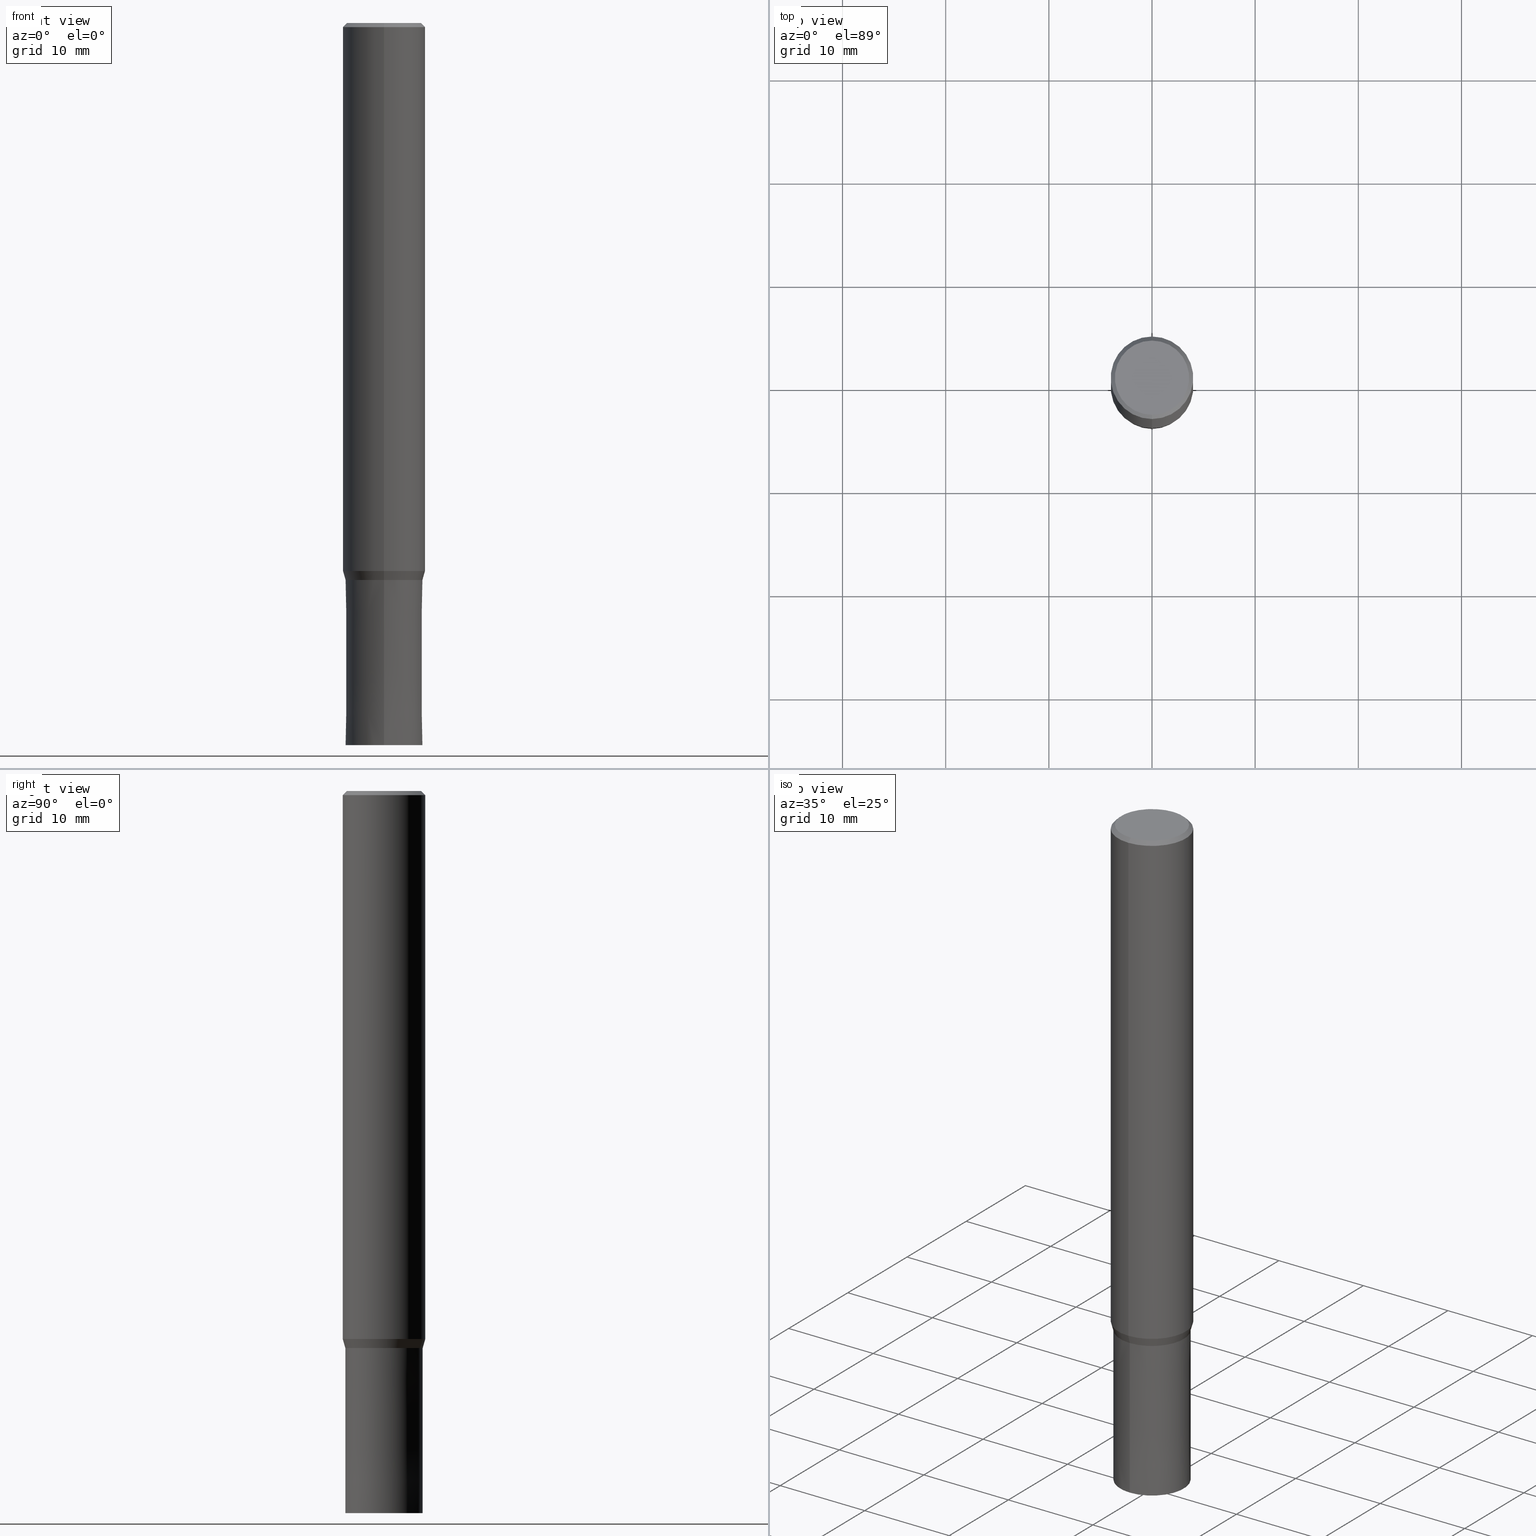
[diagram: canonical four-view strip — front | top / right | iso, engineering-drawing reading convention]
A machine part, canonical four-view strip (front | top / right | iso — engineering-drawing reading convention). The complete STEP part file that produces these views, byte-faithful:
ISO-10303-21;
HEADER;
FILE_DESCRIPTION(('no description'),'unknown implementation level');
FILE_NAME('CZS4075-1600-Huellk.stp','  ',('CIMSOURCE GmbH'),('CADClick - KiM GmbH - www.kimweb.de'),'unknown preprocess','ACIS','unknown authorization');
FILE_SCHEMA(('automotive_design'));
ENDSEC;
DATA;
#1=MECHANICAL_DESIGN_GEOMETRIC_PRESENTATION_REPRESENTATION(' ',(#14,#15,#16,#17,#18,#19,#20,#21,#22,#23,#24,#25,#26,#27,#28,#29,#30,#31,#32,#33,#34,#35,#36,#37,#38,#39,#40,#41,#42,#43,#44,#45,#46,#47,#48,#49,#50,#51,#52,#53,#54,#55,#56,#57,#58,#59,#60,#61,#62,#63,#64),#10);
#2=PRODUCT_DEFINITION_CONTEXT('',#65,'design');
#3=APPLICATION_PROTOCOL_DEFINITION('INTERNATIONAL STANDARD','automotive_design',1994,#65);
#4=PRODUCT_CATEGORY_RELATIONSHIP('NONE','NONE',#66,#67);
#5=SHAPE_DEFINITION_REPRESENTATION(#68,#69);
#6=PRODUCT_DEFINITION_CONTEXT('',#70,'design');
#7=APPLICATION_PROTOCOL_DEFINITION('INTERNATIONAL STANDARD','automotive_design',1994,#70);
#8=PRODUCT_CATEGORY_RELATIONSHIP('NONE','NONE',#71,#72);
#9=SHAPE_DEFINITION_REPRESENTATION(#73,#74);
#10= (GEOMETRIC_REPRESENTATION_CONTEXT(3)GLOBAL_UNCERTAINTY_ASSIGNED_CONTEXT((#77))GLOBAL_UNIT_ASSIGNED_CONTEXT((#79,#80,#81))REPRESENTATION_CONTEXT('NONE','WORKSPACE'));
#14=STYLED_ITEM('',(#83),#84);
#15=STYLED_ITEM('',(#85),#86);
#16=STYLED_ITEM('',(#87),#88);
#17=STYLED_ITEM('',(#89),#90);
#18=STYLED_ITEM('',(#91),#92);
#19=STYLED_ITEM('',(#93),#94);
#20=STYLED_ITEM('',(#95),#96);
#21=STYLED_ITEM('',(#97),#98);
#22=STYLED_ITEM('',(#99),#100);
#23=STYLED_ITEM('',(#101),#102);
#24=STYLED_ITEM('',(#103),#104);
#25=STYLED_ITEM('',(#105),#106);
#26=STYLED_ITEM('',(#107),#108);
#27=STYLED_ITEM('',(#109),#110);
#28=STYLED_ITEM('',(#111),#112);
#29=STYLED_ITEM('',(#113),#114);
#30=STYLED_ITEM('',(#115),#116);
#31=STYLED_ITEM('',(#117),#118);
#32=STYLED_ITEM('',(#119),#120);
#33=STYLED_ITEM('',(#121),#122);
#34=STYLED_ITEM('',(#123),#124);
#35=STYLED_ITEM('',(#125),#126);
#36=STYLED_ITEM('',(#127),#128);
#37=STYLED_ITEM('',(#129),#130);
#38=STYLED_ITEM('',(#131),#132);
#39=STYLED_ITEM('',(#133),#134);
#40=STYLED_ITEM('',(#135),#136);
#41=STYLED_ITEM('',(#137),#138);
#42=STYLED_ITEM('',(#139),#140);
#43=STYLED_ITEM('',(#141),#142);
#44=STYLED_ITEM('',(#143),#144);
#45=STYLED_ITEM('',(#145),#146);
#46=STYLED_ITEM('',(#147),#148);
#47=STYLED_ITEM('',(#149),#150);
#48=STYLED_ITEM('',(#151),#152);
#49=STYLED_ITEM('',(#153),#154);
#50=STYLED_ITEM('',(#155),#156);
#51=STYLED_ITEM('',(#157),#158);
#52=STYLED_ITEM('',(#159),#160);
#53=STYLED_ITEM('',(#161),#162);
#54=STYLED_ITEM('',(#163),#164);
#55=STYLED_ITEM('',(#165),#166);
#56=STYLED_ITEM('',(#167),#168);
#57=STYLED_ITEM('',(#169),#170);
#58=STYLED_ITEM('',(#171),#172);
#59=STYLED_ITEM('',(#173),#174);
#60=STYLED_ITEM('',(#175),#176);
#61=STYLED_ITEM('',(#177),#178);
#62=STYLED_ITEM('',(#179),#180);
#63=STYLED_ITEM('',(#181),#182);
#64=STYLED_ITEM('',(#183),#184);
#65=APPLICATION_CONTEXT(' ');
#66=PRODUCT_CATEGORY('part','NONE');
#67=PRODUCT_RELATED_PRODUCT_CATEGORY('detail',' ',(#185));
#68=PRODUCT_DEFINITION_SHAPE('NONE','NONE',#186);
#69=ADVANCED_BREP_SHAPE_REPRESENTATION('1',(#92,#187),#10);
#70=APPLICATION_CONTEXT(' ');
#71=PRODUCT_CATEGORY('part','NONE');
#72=PRODUCT_RELATED_PRODUCT_CATEGORY('detail',' ',(#188));
#73=PRODUCT_DEFINITION_SHAPE('NONE','NONE',#189);
#74=ADVANCED_BREP_SHAPE_REPRESENTATION('2',(#154,#190),#10);
#77=UNCERTAINTY_MEASURE_WITH_UNIT(LENGTH_MEASURE(1.0E-006),#79,'','');
#79= (CONVERSION_BASED_UNIT('MILLIMETRE',#193)LENGTH_UNIT()NAMED_UNIT(#196));
#80= (NAMED_UNIT(#198)PLANE_ANGLE_UNIT()SI_UNIT($,.RADIAN.));
#81= (NAMED_UNIT(#198)SOLID_ANGLE_UNIT()SI_UNIT($,.STERADIAN.));
#83=PRESENTATION_STYLE_ASSIGNMENT((#204));
#84=EDGE_CURVE('',#106,#118,#205,.T.);
#85=PRESENTATION_STYLE_ASSIGNMENT((#206));
#86=VERTEX_POINT('',#207);
#87=PRESENTATION_STYLE_ASSIGNMENT((#208));
#88=ADVANCED_FACE('',(#209,#210),#211,.T.);
#89=PRESENTATION_STYLE_ASSIGNMENT((#212));
#90=VERTEX_POINT('',#213);
#91=PRESENTATION_STYLE_ASSIGNMENT((#214));
#92=MANIFOLD_SOLID_BREP('1',#215);
#93=PRESENTATION_STYLE_ASSIGNMENT((#216));
#94=VERTEX_POINT('',#217);
#95=PRESENTATION_STYLE_ASSIGNMENT((#218));
#96=ADVANCED_FACE('',(#219),#220,.T.);
#97=PRESENTATION_STYLE_ASSIGNMENT((#221));
#98=EDGE_CURVE('',#120,#150,#222,.T.);
#99=PRESENTATION_STYLE_ASSIGNMENT((#223));
#100=ADVANCED_FACE('',(#224),#225,.T.);
#101=PRESENTATION_STYLE_ASSIGNMENT((#226));
#102=EDGE_CURVE('',#106,#94,#227,.T.);
#103=PRESENTATION_STYLE_ASSIGNMENT((#228));
#104=VERTEX_POINT('',#229);
#105=PRESENTATION_STYLE_ASSIGNMENT((#230));
#106=VERTEX_POINT('',#231);
#107=PRESENTATION_STYLE_ASSIGNMENT((#232));
#108=VERTEX_POINT('',#233);
#109=PRESENTATION_STYLE_ASSIGNMENT((#234));
#110=ADVANCED_FACE('',(#235),#236,.T.);
#111=PRESENTATION_STYLE_ASSIGNMENT((#237));
#112=EDGE_CURVE('',#134,#128,#238,.T.);
#113=PRESENTATION_STYLE_ASSIGNMENT((#239));
#114=EDGE_CURVE('',#140,#90,#240,.T.);
#115=PRESENTATION_STYLE_ASSIGNMENT((#241));
#116=ADVANCED_FACE('',(#242),#243,.T.);
#117=PRESENTATION_STYLE_ASSIGNMENT((#244));
#118=VERTEX_POINT('',#245);
#119=PRESENTATION_STYLE_ASSIGNMENT((#246));
#120=VERTEX_POINT('',#247);
#121=PRESENTATION_STYLE_ASSIGNMENT((#248));
#122=ADVANCED_FACE('',(#249),#250,.T.);
#123=PRESENTATION_STYLE_ASSIGNMENT((#251));
#124=ADVANCED_FACE('',(#252),#253,.T.);
#125=PRESENTATION_STYLE_ASSIGNMENT((#254));
#126=EDGE_CURVE('',#134,#120,#255,.T.);
#127=PRESENTATION_STYLE_ASSIGNMENT((#256));
#128=VERTEX_POINT('',#257);
#129=PRESENTATION_STYLE_ASSIGNMENT((#258));
#130=ADVANCED_FACE('',(#259),#260,.T.);
#131=PRESENTATION_STYLE_ASSIGNMENT((#261));
#132=EDGE_CURVE('',#128,#90,#262,.T.);
#133=PRESENTATION_STYLE_ASSIGNMENT((#263));
#134=VERTEX_POINT('',#264);
#135=PRESENTATION_STYLE_ASSIGNMENT((#265));
#136=VERTEX_POINT('',#266);
#137=PRESENTATION_STYLE_ASSIGNMENT((#267));
#138=EDGE_CURVE('',#136,#118,#268,.T.);
#139=PRESENTATION_STYLE_ASSIGNMENT((#269));
#140=VERTEX_POINT('',#270);
#141=PRESENTATION_STYLE_ASSIGNMENT((#271));
#142=ADVANCED_FACE('',(#272),#273,.T.);
#143=PRESENTATION_STYLE_ASSIGNMENT((#274));
#144=VERTEX_POINT('',#275);
#145=PRESENTATION_STYLE_ASSIGNMENT((#276));
#146=EDGE_CURVE('',#140,#134,#277,.T.);
#147=PRESENTATION_STYLE_ASSIGNMENT((#278));
#148=EDGE_CURVE('',#136,#94,#279,.T.);
#149=PRESENTATION_STYLE_ASSIGNMENT((#280));
#150=VERTEX_POINT('',#281);
#151=PRESENTATION_STYLE_ASSIGNMENT((#282));
#152=EDGE_CURVE('',#86,#144,#283,.T.);
#153=PRESENTATION_STYLE_ASSIGNMENT((#284));
#154=MANIFOLD_SOLID_BREP('2',#285);
#155=PRESENTATION_STYLE_ASSIGNMENT((#286));
#156=EDGE_CURVE('',#118,#136,#287,.T.);
#157=PRESENTATION_STYLE_ASSIGNMENT((#288));
#158=EDGE_CURVE('',#144,#108,#289,.T.);
#159=PRESENTATION_STYLE_ASSIGNMENT((#290));
#160=EDGE_CURVE('',#150,#128,#291,.T.);
#161=PRESENTATION_STYLE_ASSIGNMENT((#292));
#162=EDGE_CURVE('',#104,#86,#293,.T.);
#163=PRESENTATION_STYLE_ASSIGNMENT((#294));
#164=EDGE_CURVE('',#108,#144,#295,.T.);
#165=PRESENTATION_STYLE_ASSIGNMENT((#296));
#166=ADVANCED_FACE('',(#297),#298,.T.);
#167=PRESENTATION_STYLE_ASSIGNMENT((#299));
#168=EDGE_CURVE('',#90,#140,#300,.T.);
#169=PRESENTATION_STYLE_ASSIGNMENT((#301));
#170=ADVANCED_FACE('',(#302),#303,.T.);
#171=PRESENTATION_STYLE_ASSIGNMENT((#304));
#172=EDGE_CURVE('',#108,#104,#305,.T.);
#173=PRESENTATION_STYLE_ASSIGNMENT((#306));
#174=ADVANCED_FACE('',(#307),#308,.T.);
#175=PRESENTATION_STYLE_ASSIGNMENT((#309));
#176=EDGE_CURVE('',#94,#106,#310,.T.);
#177=PRESENTATION_STYLE_ASSIGNMENT((#311));
#178=EDGE_CURVE('',#150,#120,#312,.T.);
#179=PRESENTATION_STYLE_ASSIGNMENT((#313));
#180=EDGE_CURVE('',#86,#104,#314,.T.);
#181=PRESENTATION_STYLE_ASSIGNMENT((#315));
#182=EDGE_CURVE('',#128,#134,#316,.T.);
#183=PRESENTATION_STYLE_ASSIGNMENT((#317));
#184=ADVANCED_FACE('',(#318),#319,.T.);
#185=PRODUCT('1','1','PART-1-DESC',(#320));
#186=PRODUCT_DEFINITION('NONE','NONE',#321,#2);
#187=AXIS2_PLACEMENT_3D('',#322,#323,#324);
#188=PRODUCT('2','2','PART-2-DESC',(#325));
#189=PRODUCT_DEFINITION('NONE','NONE',#326,#6);
#190=AXIS2_PLACEMENT_3D('',#327,#328,#329);
#193=LENGTH_MEASURE_WITH_UNIT(LENGTH_MEASURE(1.0),#330);
#196=DIMENSIONAL_EXPONENTS(1.0,0.0,0.0,0.0,0.0,0.0,0.0);
#198=DIMENSIONAL_EXPONENTS(0.0,0.0,0.0,0.0,0.0,0.0,0.0);
#204=CURVE_STYLE('',#331,POSITIVE_LENGTH_MEASURE(1.0E-006),#332);
#205=LINE('',#333,#334);
#206=POINT_STYLE(' ',#335,POSITIVE_LENGTH_MEASURE(1.0E-006),#336);
#207=CARTESIAN_POINT('',(0.0,3.99995,-53.128));
#208=SURFACE_STYLE_USAGE(.BOTH.,#337);
#209=FACE_OUTER_BOUND('',#338,.T.);
#210=FACE_BOUND('',#339,.T.);
#211=PLANE('',#340);
#212=POINT_STYLE(' ',#341,POSITIVE_LENGTH_MEASURE(1.0E-006),#342);
#213=CARTESIAN_POINT('',(4.40858287376056E-016,-3.6,0.0));
#214=SURFACE_STYLE_USAGE(.BOTH.,#343);
#215=CLOSED_SHELL('',(#130,#174,#184,#88,#96,#122,#142,#110,#124));
#216=POINT_STYLE(' ',#344,POSITIVE_LENGTH_MEASURE(1.0E-006),#345);
#217=CARTESIAN_POINT('',(4.59215136619853E-016,-3.7499,-54.0));
#218=SURFACE_STYLE_USAGE(.BOTH.,#346);
#219=FACE_OUTER_BOUND('',#347,.T.);
#220=PLANE('',#348);
#221=CURVE_STYLE('',#349,POSITIVE_LENGTH_MEASURE(1.0E-006),#350);
#222=CIRCLE('',#351,4.0);
#223=SURFACE_STYLE_USAGE(.BOTH.,#352);
#224=FACE_OUTER_BOUND('',#353,.T.);
#225=CONICAL_SURFACE('',#354,3.74995,6.24999999993181E-006);
#226=CURVE_STYLE('',#355,POSITIVE_LENGTH_MEASURE(1.0E-006),#356);
#227=CIRCLE('',#357,3.7499);
#228=POINT_STYLE(' ',#358,POSITIVE_LENGTH_MEASURE(1.0E-006),#359);
#229=CARTESIAN_POINT('',(4.89836418497182E-016,-3.99995,-53.128));
#230=POINT_STYLE(' ',#360,POSITIVE_LENGTH_MEASURE(1.0E-006),#361);
#231=CARTESIAN_POINT('',(0.0,3.7499,-54.0));
#232=POINT_STYLE(' ',#362,POSITIVE_LENGTH_MEASURE(1.0E-006),#363);
#233=CARTESIAN_POINT('',(4.59221259651622E-016,-3.74995,-54.0));
#234=SURFACE_STYLE_USAGE(.BOTH.,#364);
#235=FACE_OUTER_BOUND('',#365,.T.);
#236=CONICAL_SURFACE('',#366,3.87495,0.279208199033747);
#237=CURVE_STYLE('',#367,POSITIVE_LENGTH_MEASURE(1.0E-006),#368);
#238=CIRCLE('',#369,4.0);
#239=CURVE_STYLE('',#370,POSITIVE_LENGTH_MEASURE(1.0E-006),#371);
#240=CIRCLE('',#372,3.6);
#241=SURFACE_STYLE_USAGE(.BOTH.,#373);
#242=FACE_OUTER_BOUND('',#374,.T.);
#243=CONICAL_SURFACE('',#375,3.74995,6.24999999993181E-006);
#244=POINT_STYLE(' ',#376,POSITIVE_LENGTH_MEASURE(1.0E-006),#377);
#245=CARTESIAN_POINT('',(0.0,3.75,-70.0));
#246=POINT_STYLE(' ',#378,POSITIVE_LENGTH_MEASURE(1.0E-006),#379);
#247=CARTESIAN_POINT('',(0.0,4.0,-53.128));
#248=SURFACE_STYLE_USAGE(.BOTH.,#380);
#249=FACE_OUTER_BOUND('',#381,.T.);
#250=CONICAL_SURFACE('',#382,3.8,0.78539816339745);
#251=SURFACE_STYLE_USAGE(.BOTH.,#383);
#252=FACE_OUTER_BOUND('',#384,.T.);
#253=PLANE('',#385);
#254=CURVE_STYLE('',#386,POSITIVE_LENGTH_MEASURE(1.0E-006),#387);
#255=LINE('',#388,#389);
#256=POINT_STYLE(' ',#390,POSITIVE_LENGTH_MEASURE(1.0E-006),#391);
#257=CARTESIAN_POINT('',(4.89842541528951E-016,-4.0,-0.399999999999999));
#258=SURFACE_STYLE_USAGE(.BOTH.,#392);
#259=FACE_OUTER_BOUND('',#393,.T.);
#260=CONICAL_SURFACE('',#394,3.87495,0.279208199033747);
#261=CURVE_STYLE('',#395,POSITIVE_LENGTH_MEASURE(1.0E-006),#396);
#262=LINE('',#397,#398);
#263=POINT_STYLE(' ',#399,POSITIVE_LENGTH_MEASURE(1.0E-006),#400);
#264=CARTESIAN_POINT('',(0.0,4.0,-0.399999999999999));
#265=POINT_STYLE(' ',#401,POSITIVE_LENGTH_MEASURE(1.0E-006),#402);
#266=CARTESIAN_POINT('',(4.59227382683391E-016,-3.75,-70.0));
#267=CURVE_STYLE('',#403,POSITIVE_LENGTH_MEASURE(1.0E-006),#404);
#268=CIRCLE('',#405,3.75);
#269=POINT_STYLE(' ',#406,POSITIVE_LENGTH_MEASURE(1.0E-006),#407);
#270=CARTESIAN_POINT('',(0.0,3.6,0.0));
#271=SURFACE_STYLE_USAGE(.BOTH.,#408);
#272=FACE_OUTER_BOUND('',#409,.T.);
#273=CYLINDRICAL_SURFACE('',#410,4.0);
#274=POINT_STYLE(' ',#411,POSITIVE_LENGTH_MEASURE(1.0E-006),#412);
#275=CARTESIAN_POINT('',(0.0,3.74995,-54.0));
#276=CURVE_STYLE('',#413,POSITIVE_LENGTH_MEASURE(1.0E-006),#414);
#277=LINE('',#415,#416);
#278=CURVE_STYLE('',#417,POSITIVE_LENGTH_MEASURE(1.0E-006),#418);
#279=LINE('',#419,#420);
#280=POINT_STYLE(' ',#421,POSITIVE_LENGTH_MEASURE(1.0E-006),#422);
#281=CARTESIAN_POINT('',(4.89842541528951E-016,-4.0,-53.128));
#282=CURVE_STYLE('',#423,POSITIVE_LENGTH_MEASURE(1.0E-006),#424);
#283=LINE('',#425,#426);
#284=SURFACE_STYLE_USAGE(.BOTH.,#427);
#285=CLOSED_SHELL('',(#116,#166,#100,#170));
#286=CURVE_STYLE('',#428,POSITIVE_LENGTH_MEASURE(1.0E-006),#429);
#287=CIRCLE('',#430,3.75);
#288=CURVE_STYLE('',#431,POSITIVE_LENGTH_MEASURE(1.0E-006),#432);
#289=CIRCLE('',#433,3.74995);
#290=CURVE_STYLE('',#434,POSITIVE_LENGTH_MEASURE(1.0E-006),#435);
#291=LINE('',#436,#437);
#292=CURVE_STYLE('',#438,POSITIVE_LENGTH_MEASURE(1.0E-006),#439);
#293=CIRCLE('',#440,3.99995);
#294=CURVE_STYLE('',#441,POSITIVE_LENGTH_MEASURE(1.0E-006),#442);
#295=CIRCLE('',#443,3.74995);
#296=SURFACE_STYLE_USAGE(.BOTH.,#444);
#297=FACE_OUTER_BOUND('',#445,.T.);
#298=PLANE('',#446);
#299=CURVE_STYLE('',#447,POSITIVE_LENGTH_MEASURE(1.0E-006),#448);
#300=CIRCLE('',#449,3.6);
#301=SURFACE_STYLE_USAGE(.BOTH.,#450);
#302=FACE_OUTER_BOUND('',#451,.T.);
#303=PLANE('',#452);
#304=CURVE_STYLE('',#453,POSITIVE_LENGTH_MEASURE(1.0E-006),#454);
#305=LINE('',#455,#456);
#306=SURFACE_STYLE_USAGE(.BOTH.,#457);
#307=FACE_OUTER_BOUND('',#458,.T.);
#308=CYLINDRICAL_SURFACE('',#459,4.0);
#309=CURVE_STYLE('',#460,POSITIVE_LENGTH_MEASURE(1.0E-006),#461);
#310=CIRCLE('',#462,3.7499);
#311=CURVE_STYLE('',#463,POSITIVE_LENGTH_MEASURE(1.0E-006),#464);
#312=CIRCLE('',#465,4.0);
#313=CURVE_STYLE('',#466,POSITIVE_LENGTH_MEASURE(1.0E-006),#467);
#314=CIRCLE('',#468,3.99995);
#315=CURVE_STYLE('',#469,POSITIVE_LENGTH_MEASURE(1.0E-006),#470);
#316=CIRCLE('',#471,4.0);
#317=SURFACE_STYLE_USAGE(.BOTH.,#472);
#318=FACE_OUTER_BOUND('',#473,.T.);
#319=CONICAL_SURFACE('',#474,3.8,0.78539816339745);
#320=PRODUCT_CONTEXT('',#65,'mechanical');
#321=PRODUCT_DEFINITION_FORMATION_WITH_SPECIFIED_SOURCE(' ','NONE',#185,.NOT_KNOWN.);
#322=CARTESIAN_POINT('',(0.0,0.0,0.0));
#323=DIRECTION('',(0.0,0.0,1.0));
#324=DIRECTION('',(1.0,0.0,0.0));
#325=PRODUCT_CONTEXT('',#70,'mechanical');
#326=PRODUCT_DEFINITION_FORMATION_WITH_SPECIFIED_SOURCE(' ','NONE',#188,.NOT_KNOWN.);
#327=CARTESIAN_POINT('',(0.0,0.0,0.0));
#328=DIRECTION('',(0.0,0.0,1.0));
#329=DIRECTION('',(1.0,0.0,0.0));
#330= (NAMED_UNIT(#196)LENGTH_UNIT()SI_UNIT(.MILLI.,.METRE.));
#331=DRAUGHTING_PRE_DEFINED_CURVE_FONT('continuous');
#332=COLOUR_RGB('',0.800000011920929,0.800000011920929,0.800000011920929);
#333=CARTESIAN_POINT('',(-4.59221259651622E-016,3.74995,-62.0));
#334=VECTOR('',#476,1.0);
#335=PRE_DEFINED_MARKER('');
#336=COLOUR_RGB('',0.498039215803146,0.498039215803146,0.498039215803146);
#337=SURFACE_SIDE_STYLE('',(#477));
#338=EDGE_LOOP('',(#478,#479));
#339=EDGE_LOOP('',(#480,#481));
#340=AXIS2_PLACEMENT_3D('',#482,#483,#484);
#341=PRE_DEFINED_MARKER('');
#342=COLOUR_RGB('',0.498039215803146,0.498039215803146,0.498039215803146);
#343=SURFACE_SIDE_STYLE('',(#485));
#344=PRE_DEFINED_MARKER('');
#345=COLOUR_RGB('',0.800000011920929,0.800000011920929,0.800000011920929);
#346=SURFACE_SIDE_STYLE('',(#486));
#347=EDGE_LOOP('',(#487,#488));
#348=AXIS2_PLACEMENT_3D('',#489,#490,#491);
#349=DRAUGHTING_PRE_DEFINED_CURVE_FONT('continuous');
#350=COLOUR_RGB('',0.498039215803146,0.498039215803146,0.498039215803146);
#351=AXIS2_PLACEMENT_3D('',#492,#493,#494);
#352=SURFACE_SIDE_STYLE('',(#495));
#353=EDGE_LOOP('',(#496,#497,#498,#499));
#354=AXIS2_PLACEMENT_3D('',#500,#501,#502);
#355=DRAUGHTING_PRE_DEFINED_CURVE_FONT('continuous');
#356=COLOUR_RGB('',0.800000011920929,0.800000011920929,0.800000011920929);
#357=AXIS2_PLACEMENT_3D('',#503,#504,#505);
#358=PRE_DEFINED_MARKER('');
#359=COLOUR_RGB('',0.498039215803146,0.498039215803146,0.498039215803146);
#360=PRE_DEFINED_MARKER('');
#361=COLOUR_RGB('',0.800000011920929,0.800000011920929,0.800000011920929);
#362=PRE_DEFINED_MARKER('');
#363=COLOUR_RGB('',0.498039215803146,0.498039215803146,0.498039215803146);
#364=SURFACE_SIDE_STYLE('',(#506));
#365=EDGE_LOOP('',(#507,#508,#509,#510));
#366=AXIS2_PLACEMENT_3D('',#511,#512,#513);
#367=DRAUGHTING_PRE_DEFINED_CURVE_FONT('continuous');
#368=COLOUR_RGB('',0.498039215803146,0.498039215803146,0.498039215803146);
#369=AXIS2_PLACEMENT_3D('',#514,#515,#516);
#370=DRAUGHTING_PRE_DEFINED_CURVE_FONT('continuous');
#371=COLOUR_RGB('',0.498039215803146,0.498039215803146,0.498039215803146);
#372=AXIS2_PLACEMENT_3D('',#517,#518,#519);
#373=SURFACE_SIDE_STYLE('',(#520));
#374=EDGE_LOOP('',(#521,#522,#523,#524));
#375=AXIS2_PLACEMENT_3D('',#525,#526,#527);
#376=PRE_DEFINED_MARKER('');
#377=COLOUR_RGB('',0.800000011920929,0.800000011920929,0.800000011920929);
#378=PRE_DEFINED_MARKER('');
#379=COLOUR_RGB('',0.498039215803146,0.498039215803146,0.498039215803146);
#380=SURFACE_SIDE_STYLE('',(#528));
#381=EDGE_LOOP('',(#529,#530,#531,#532));
#382=AXIS2_PLACEMENT_3D('',#533,#534,#535);
#383=SURFACE_SIDE_STYLE('',(#536));
#384=EDGE_LOOP('',(#537,#538));
#385=AXIS2_PLACEMENT_3D('',#539,#540,#541);
#386=DRAUGHTING_PRE_DEFINED_CURVE_FONT('continuous');
#387=COLOUR_RGB('',0.498039215803146,0.498039215803146,0.498039215803146);
#388=CARTESIAN_POINT('',(-4.89842541528951E-016,4.0,-26.764));
#389=VECTOR('',#542,1.0);
#390=PRE_DEFINED_MARKER('');
#391=COLOUR_RGB('',0.498039215803146,0.498039215803146,0.498039215803146);
#392=SURFACE_SIDE_STYLE('',(#543));
#393=EDGE_LOOP('',(#544,#545,#546,#547));
#394=AXIS2_PLACEMENT_3D('',#548,#549,#550);
#395=DRAUGHTING_PRE_DEFINED_CURVE_FONT('continuous');
#396=COLOUR_RGB('',0.498039215803146,0.498039215803146,0.498039215803146);
#397=CARTESIAN_POINT('',(4.65350414452503E-016,-3.8,-0.200000000000003));
#398=VECTOR('',#551,1.0);
#399=PRE_DEFINED_MARKER('');
#400=COLOUR_RGB('',0.498039215803146,0.498039215803146,0.498039215803146);
#401=PRE_DEFINED_MARKER('');
#402=COLOUR_RGB('',0.800000011920929,0.800000011920929,0.800000011920929);
#403=DRAUGHTING_PRE_DEFINED_CURVE_FONT('continuous');
#404=COLOUR_RGB('',0.800000011920929,0.800000011920929,0.800000011920929);
#405=AXIS2_PLACEMENT_3D('',#552,#553,#554);
#406=PRE_DEFINED_MARKER('');
#407=COLOUR_RGB('',0.498039215803146,0.498039215803146,0.498039215803146);
#408=SURFACE_SIDE_STYLE('',(#555));
#409=EDGE_LOOP('',(#556,#557,#558,#559));
#410=AXIS2_PLACEMENT_3D('',#560,#561,#562);
#411=PRE_DEFINED_MARKER('');
#412=COLOUR_RGB('',0.498039215803146,0.498039215803146,0.498039215803146);
#413=DRAUGHTING_PRE_DEFINED_CURVE_FONT('continuous');
#414=COLOUR_RGB('',0.498039215803146,0.498039215803146,0.498039215803146);
#415=CARTESIAN_POINT('',(-4.65350414452503E-016,3.8,-0.200000000000003));
#416=VECTOR('',#563,1.0);
#417=DRAUGHTING_PRE_DEFINED_CURVE_FONT('continuous');
#418=COLOUR_RGB('',0.800000011920929,0.800000011920929,0.800000011920929);
#419=CARTESIAN_POINT('',(4.59221259651622E-016,-3.74995,-62.0));
#420=VECTOR('',#564,1.0);
#421=PRE_DEFINED_MARKER('');
#422=COLOUR_RGB('',0.498039215803146,0.498039215803146,0.498039215803146);
#423=DRAUGHTING_PRE_DEFINED_CURVE_FONT('continuous');
#424=COLOUR_RGB('',0.498039215803146,0.498039215803146,0.498039215803146);
#425=CARTESIAN_POINT('',(-4.74528839074402E-016,3.87495,-53.564));
#426=VECTOR('',#565,1.0);
#427=SURFACE_SIDE_STYLE('',(#566));
#428=DRAUGHTING_PRE_DEFINED_CURVE_FONT('continuous');
#429=COLOUR_RGB('',0.800000011920929,0.800000011920929,0.800000011920929);
#430=AXIS2_PLACEMENT_3D('',#567,#568,#569);
#431=DRAUGHTING_PRE_DEFINED_CURVE_FONT('continuous');
#432=COLOUR_RGB('',0.498039215803146,0.498039215803146,0.498039215803146);
#433=AXIS2_PLACEMENT_3D('',#570,#571,#572);
#434=DRAUGHTING_PRE_DEFINED_CURVE_FONT('continuous');
#435=COLOUR_RGB('',0.498039215803146,0.498039215803146,0.498039215803146);
#436=CARTESIAN_POINT('',(4.89842541528951E-016,-4.0,-26.764));
#437=VECTOR('',#573,1.0);
#438=DRAUGHTING_PRE_DEFINED_CURVE_FONT('continuous');
#439=COLOUR_RGB('',0.498039215803146,0.498039215803146,0.498039215803146);
#440=AXIS2_PLACEMENT_3D('',#574,#575,#576);
#441=DRAUGHTING_PRE_DEFINED_CURVE_FONT('continuous');
#442=COLOUR_RGB('',0.498039215803146,0.498039215803146,0.498039215803146);
#443=AXIS2_PLACEMENT_3D('',#577,#578,#579);
#444=SURFACE_SIDE_STYLE('',(#580));
#445=EDGE_LOOP('',(#581,#582));
#446=AXIS2_PLACEMENT_3D('',#583,#584,#585);
#447=DRAUGHTING_PRE_DEFINED_CURVE_FONT('continuous');
#448=COLOUR_RGB('',0.498039215803146,0.498039215803146,0.498039215803146);
#449=AXIS2_PLACEMENT_3D('',#586,#587,#588);
#450=SURFACE_SIDE_STYLE('',(#589));
#451=EDGE_LOOP('',(#590,#591));
#452=AXIS2_PLACEMENT_3D('',#592,#593,#594);
#453=DRAUGHTING_PRE_DEFINED_CURVE_FONT('continuous');
#454=COLOUR_RGB('',0.498039215803146,0.498039215803146,0.498039215803146);
#455=CARTESIAN_POINT('',(4.74528839074402E-016,-3.87495,-53.564));
#456=VECTOR('',#595,1.0);
#457=SURFACE_SIDE_STYLE('',(#596));
#458=EDGE_LOOP('',(#597,#598,#599,#600));
#459=AXIS2_PLACEMENT_3D('',#601,#602,#603);
#460=DRAUGHTING_PRE_DEFINED_CURVE_FONT('continuous');
#461=COLOUR_RGB('',0.800000011920929,0.800000011920929,0.800000011920929);
#462=AXIS2_PLACEMENT_3D('',#604,#605,#606);
#463=DRAUGHTING_PRE_DEFINED_CURVE_FONT('continuous');
#464=COLOUR_RGB('',0.498039215803146,0.498039215803146,0.498039215803146);
#465=AXIS2_PLACEMENT_3D('',#607,#608,#609);
#466=DRAUGHTING_PRE_DEFINED_CURVE_FONT('continuous');
#467=COLOUR_RGB('',0.498039215803146,0.498039215803146,0.498039215803146);
#468=AXIS2_PLACEMENT_3D('',#610,#611,#612);
#469=DRAUGHTING_PRE_DEFINED_CURVE_FONT('continuous');
#470=COLOUR_RGB('',0.498039215803146,0.498039215803146,0.498039215803146);
#471=AXIS2_PLACEMENT_3D('',#613,#614,#615);
#472=SURFACE_SIDE_STYLE('',(#616));
#473=EDGE_LOOP('',(#617,#618,#619,#620));
#474=AXIS2_PLACEMENT_3D('',#621,#622,#623);
#476=DIRECTION('',(-7.65378971125652E-022,6.24999999989112E-006,-0.999999999980469));
#477=SURFACE_STYLE_FILL_AREA(#624);
#478=ORIENTED_EDGE('',*,*,#98,.T.);
#479=ORIENTED_EDGE('',*,*,#178,.T.);
#480=ORIENTED_EDGE('',*,*,#180,.F.);
#481=ORIENTED_EDGE('',*,*,#162,.F.);
#482=CARTESIAN_POINT('',(0.0,2.0,-53.128));
#483=DIRECTION('',(0.0,0.0,-1.0));
#484=DIRECTION('',(0.0,1.0,0.0));
#485=SURFACE_STYLE_FILL_AREA(#625);
#486=SURFACE_STYLE_FILL_AREA(#626);
#487=ORIENTED_EDGE('',*,*,#114,.F.);
#488=ORIENTED_EDGE('',*,*,#168,.F.);
#489=CARTESIAN_POINT('',(0.0,1.8,0.0));
#490=DIRECTION('',(-0.0,0.0,1.0));
#491=DIRECTION('',(0.0,-1.0,0.0));
#492=CARTESIAN_POINT('',(0.0,0.0,-53.128));
#493=DIRECTION('',(0.0,0.0,-1.0));
#494=DIRECTION('',(0.0,1.0,0.0));
#495=SURFACE_STYLE_FILL_AREA(#627);
#496=ORIENTED_EDGE('',*,*,#84,.T.);
#497=ORIENTED_EDGE('',*,*,#138,.F.);
#498=ORIENTED_EDGE('',*,*,#148,.T.);
#499=ORIENTED_EDGE('',*,*,#176,.T.);
#500=CARTESIAN_POINT('',(0.0,0.0,-62.0));
#501=DIRECTION('',(0.0,-0.0,-1.0));
#502=DIRECTION('',(0.0,1.0,0.0));
#503=CARTESIAN_POINT('',(0.0,0.0,-54.0));
#504=DIRECTION('',(0.0,0.0,-1.0));
#505=DIRECTION('',(0.0,1.0,0.0));
#506=SURFACE_STYLE_FILL_AREA(#628);
#507=ORIENTED_EDGE('',*,*,#152,.T.);
#508=ORIENTED_EDGE('',*,*,#164,.F.);
#509=ORIENTED_EDGE('',*,*,#172,.T.);
#510=ORIENTED_EDGE('',*,*,#162,.T.);
#511=CARTESIAN_POINT('',(0.0,0.0,-53.564));
#512=DIRECTION('',(-0.0,-0.0,1.0));
#513=DIRECTION('',(0.0,1.0,0.0));
#514=CARTESIAN_POINT('',(0.0,0.0,-0.399999999999999));
#515=DIRECTION('',(0.0,0.0,-1.0));
#516=DIRECTION('',(0.0,1.0,0.0));
#517=CARTESIAN_POINT('',(0.0,0.0,0.0));
#518=DIRECTION('',(0.0,0.0,-1.0));
#519=DIRECTION('',(0.0,1.0,0.0));
#520=SURFACE_STYLE_FILL_AREA(#629);
#521=ORIENTED_EDGE('',*,*,#84,.F.);
#522=ORIENTED_EDGE('',*,*,#102,.T.);
#523=ORIENTED_EDGE('',*,*,#148,.F.);
#524=ORIENTED_EDGE('',*,*,#156,.F.);
#525=CARTESIAN_POINT('',(0.0,0.0,-62.0));
#526=DIRECTION('',(0.0,-0.0,-1.0));
#527=DIRECTION('',(0.0,1.0,0.0));
#528=SURFACE_STYLE_FILL_AREA(#630);
#529=ORIENTED_EDGE('',*,*,#146,.T.);
#530=ORIENTED_EDGE('',*,*,#182,.F.);
#531=ORIENTED_EDGE('',*,*,#132,.T.);
#532=ORIENTED_EDGE('',*,*,#168,.T.);
#533=CARTESIAN_POINT('',(0.0,0.0,-0.200000000000003));
#534=DIRECTION('',(0.0,-0.0,-1.0));
#535=DIRECTION('',(0.0,1.0,0.0));
#536=SURFACE_STYLE_FILL_AREA(#631);
#537=ORIENTED_EDGE('',*,*,#158,.T.);
#538=ORIENTED_EDGE('',*,*,#164,.T.);
#539=CARTESIAN_POINT('',(0.0,1.874975,-54.0));
#540=DIRECTION('',(0.0,0.0,-1.0));
#541=DIRECTION('',(0.0,1.0,0.0));
#542=DIRECTION('',(0.0,0.0,-1.0));
#543=SURFACE_STYLE_FILL_AREA(#632);
#544=ORIENTED_EDGE('',*,*,#152,.F.);
#545=ORIENTED_EDGE('',*,*,#180,.T.);
#546=ORIENTED_EDGE('',*,*,#172,.F.);
#547=ORIENTED_EDGE('',*,*,#158,.F.);
#548=CARTESIAN_POINT('',(0.0,0.0,-53.564));
#549=DIRECTION('',(-0.0,-0.0,1.0));
#550=DIRECTION('',(0.0,1.0,0.0));
#551=DIRECTION('',(-8.65927457071937E-017,0.707106781186549,0.707106781186546));
#552=CARTESIAN_POINT('',(0.0,0.0,-70.0));
#553=DIRECTION('',(0.0,0.0,-1.0));
#554=DIRECTION('',(0.0,1.0,0.0));
#555=SURFACE_STYLE_FILL_AREA(#633);
#556=ORIENTED_EDGE('',*,*,#126,.T.);
#557=ORIENTED_EDGE('',*,*,#178,.F.);
#558=ORIENTED_EDGE('',*,*,#160,.T.);
#559=ORIENTED_EDGE('',*,*,#182,.T.);
#560=CARTESIAN_POINT('',(0.0,0.0,-26.764));
#561=DIRECTION('',(-0.0,-0.0,1.0));
#562=DIRECTION('',(0.0,1.0,0.0));
#563=DIRECTION('',(-8.65927457071937E-017,0.707106781186549,-0.707106781186546));
#564=DIRECTION('',(-7.65378971125652E-022,6.24999999989112E-006,0.999999999980469));
#565=DIRECTION('',(3.37494895041124E-017,-0.275594597388538,-0.961273955691222));
#566=SURFACE_STYLE_FILL_AREA(#634);
#567=CARTESIAN_POINT('',(0.0,0.0,-70.0));
#568=DIRECTION('',(0.0,0.0,-1.0));
#569=DIRECTION('',(0.0,1.0,0.0));
#570=CARTESIAN_POINT('',(0.0,0.0,-54.0));
#571=DIRECTION('',(0.0,0.0,-1.0));
#572=DIRECTION('',(0.0,1.0,0.0));
#573=DIRECTION('',(-0.0,-0.0,1.0));
#574=CARTESIAN_POINT('',(0.0,0.0,-53.128));
#575=DIRECTION('',(0.0,0.0,-1.0));
#576=DIRECTION('',(0.0,1.0,0.0));
#577=CARTESIAN_POINT('',(0.0,0.0,-54.0));
#578=DIRECTION('',(0.0,0.0,-1.0));
#579=DIRECTION('',(0.0,1.0,0.0));
#580=SURFACE_STYLE_FILL_AREA(#635);
#581=ORIENTED_EDGE('',*,*,#102,.F.);
#582=ORIENTED_EDGE('',*,*,#176,.F.);
#583=CARTESIAN_POINT('',(0.0,1.87495,-54.0));
#584=DIRECTION('',(-0.0,0.0,1.0));
#585=DIRECTION('',(0.0,-1.0,0.0));
#586=CARTESIAN_POINT('',(0.0,0.0,0.0));
#587=DIRECTION('',(0.0,0.0,-1.0));
#588=DIRECTION('',(0.0,1.0,0.0));
#589=SURFACE_STYLE_FILL_AREA(#636);
#590=ORIENTED_EDGE('',*,*,#156,.T.);
#591=ORIENTED_EDGE('',*,*,#138,.T.);
#592=CARTESIAN_POINT('',(0.0,1.8725,-70.0));
#593=DIRECTION('',(0.0,0.0,-1.0));
#594=DIRECTION('',(0.0,1.0,0.0));
#595=DIRECTION('',(3.37494895041124E-017,-0.275594597388538,0.961273955691222));
#596=SURFACE_STYLE_FILL_AREA(#637);
#597=ORIENTED_EDGE('',*,*,#126,.F.);
#598=ORIENTED_EDGE('',*,*,#112,.T.);
#599=ORIENTED_EDGE('',*,*,#160,.F.);
#600=ORIENTED_EDGE('',*,*,#98,.F.);
#601=CARTESIAN_POINT('',(0.0,0.0,-26.764));
#602=DIRECTION('',(-0.0,-0.0,1.0));
#603=DIRECTION('',(0.0,1.0,0.0));
#604=CARTESIAN_POINT('',(0.0,0.0,-54.0));
#605=DIRECTION('',(0.0,0.0,-1.0));
#606=DIRECTION('',(0.0,1.0,0.0));
#607=CARTESIAN_POINT('',(0.0,0.0,-53.128));
#608=DIRECTION('',(0.0,0.0,-1.0));
#609=DIRECTION('',(0.0,1.0,0.0));
#610=CARTESIAN_POINT('',(0.0,0.0,-53.128));
#611=DIRECTION('',(0.0,0.0,-1.0));
#612=DIRECTION('',(0.0,1.0,0.0));
#613=CARTESIAN_POINT('',(0.0,0.0,-0.399999999999999));
#614=DIRECTION('',(0.0,0.0,-1.0));
#615=DIRECTION('',(0.0,1.0,0.0));
#616=SURFACE_STYLE_FILL_AREA(#638);
#617=ORIENTED_EDGE('',*,*,#146,.F.);
#618=ORIENTED_EDGE('',*,*,#114,.T.);
#619=ORIENTED_EDGE('',*,*,#132,.F.);
#620=ORIENTED_EDGE('',*,*,#112,.F.);
#621=CARTESIAN_POINT('',(0.0,0.0,-0.200000000000003));
#622=DIRECTION('',(0.0,-0.0,-1.0));
#623=DIRECTION('',(0.0,1.0,0.0));
#624=FILL_AREA_STYLE('',(#639));
#625=FILL_AREA_STYLE('',(#640));
#626=FILL_AREA_STYLE('',(#641));
#627=FILL_AREA_STYLE('',(#642));
#628=FILL_AREA_STYLE('',(#643));
#629=FILL_AREA_STYLE('',(#644));
#630=FILL_AREA_STYLE('',(#645));
#631=FILL_AREA_STYLE('',(#646));
#632=FILL_AREA_STYLE('',(#647));
#633=FILL_AREA_STYLE('',(#648));
#634=FILL_AREA_STYLE('',(#649));
#635=FILL_AREA_STYLE('',(#650));
#636=FILL_AREA_STYLE('',(#651));
#637=FILL_AREA_STYLE('',(#652));
#638=FILL_AREA_STYLE('',(#653));
#639=FILL_AREA_STYLE_COLOUR('',#654);
#640=FILL_AREA_STYLE_COLOUR('',#655);
#641=FILL_AREA_STYLE_COLOUR('',#656);
#642=FILL_AREA_STYLE_COLOUR('',#657);
#643=FILL_AREA_STYLE_COLOUR('',#658);
#644=FILL_AREA_STYLE_COLOUR('',#659);
#645=FILL_AREA_STYLE_COLOUR('',#660);
#646=FILL_AREA_STYLE_COLOUR('',#661);
#647=FILL_AREA_STYLE_COLOUR('',#662);
#648=FILL_AREA_STYLE_COLOUR('',#663);
#649=FILL_AREA_STYLE_COLOUR('',#664);
#650=FILL_AREA_STYLE_COLOUR('',#665);
#651=FILL_AREA_STYLE_COLOUR('',#666);
#652=FILL_AREA_STYLE_COLOUR('',#667);
#653=FILL_AREA_STYLE_COLOUR('',#668);
#654=COLOUR_RGB('',0.498039215803146,0.498039215803146,0.498039215803146);
#655=COLOUR_RGB('',0.498039215803146,0.498039215803146,0.498039215803146);
#656=COLOUR_RGB('',0.498039215803146,0.498039215803146,0.498039215803146);
#657=COLOUR_RGB('',0.800000011920929,0.800000011920929,0.800000011920929);
#658=COLOUR_RGB('',0.498039215803146,0.498039215803146,0.498039215803146);
#659=COLOUR_RGB('',0.800000011920929,0.800000011920929,0.800000011920929);
#660=COLOUR_RGB('',0.498039215803146,0.498039215803146,0.498039215803146);
#661=COLOUR_RGB('',0.498039215803146,0.498039215803146,0.498039215803146);
#662=COLOUR_RGB('',0.498039215803146,0.498039215803146,0.498039215803146);
#663=COLOUR_RGB('',0.498039215803146,0.498039215803146,0.498039215803146);
#664=COLOUR_RGB('',0.800000011920929,0.800000011920929,0.800000011920929);
#665=COLOUR_RGB('',0.800000011920929,0.800000011920929,0.800000011920929);
#666=COLOUR_RGB('',0.800000011920929,0.800000011920929,0.800000011920929);
#667=COLOUR_RGB('',0.498039215803146,0.498039215803146,0.498039215803146);
#668=COLOUR_RGB('',0.498039215803146,0.498039215803146,0.498039215803146);
#669=AXIS2_PLACEMENT_3D('PCS',#670,#671,#672);
#670=CARTESIAN_POINT('',(0.0,0.0,0.0));
#671=DIRECTION('',(0.0,0.0,1.0));
#672=DIRECTION('',(1.0,0.0,0.0));
#673=AXIS2_PLACEMENT_3D('CIP',#674,#675,#676);
#674=CARTESIAN_POINT('',(0.0,0.0,-70.0));
#675=DIRECTION('',(0.0,0.0,1.0));
#676=DIRECTION('',(1.0,0.0,0.0));
#677=AXIS2_PLACEMENT_3D('CRP',#678,#679,#680);
#678=CARTESIAN_POINT('',(-3.75,0.0,-70.0));
#679=DIRECTION('',(0.0,0.0,1.0));
#680=DIRECTION('',(1.0,0.0,0.0));
#681=AXIS2_PLACEMENT_3D('MCS',#682,#683,#684);
#682=CARTESIAN_POINT('',(0.0,0.0,-53.128));
#683=DIRECTION('',(0.0,0.0,1.0));
#684=DIRECTION('',(1.0,0.0,0.0));
#685=CONSTRUCTIVE_GEOMETRY_REPRESENTATION_RELATIONSHIP('coordinate systems',$,#69,#686);
#686=CONSTRUCTIVE_GEOMETRY_REPRESENTATION('coordinate systems',(#669,#673,#677,#681),#10);
ENDSEC;
END-ISO-10303-21;
